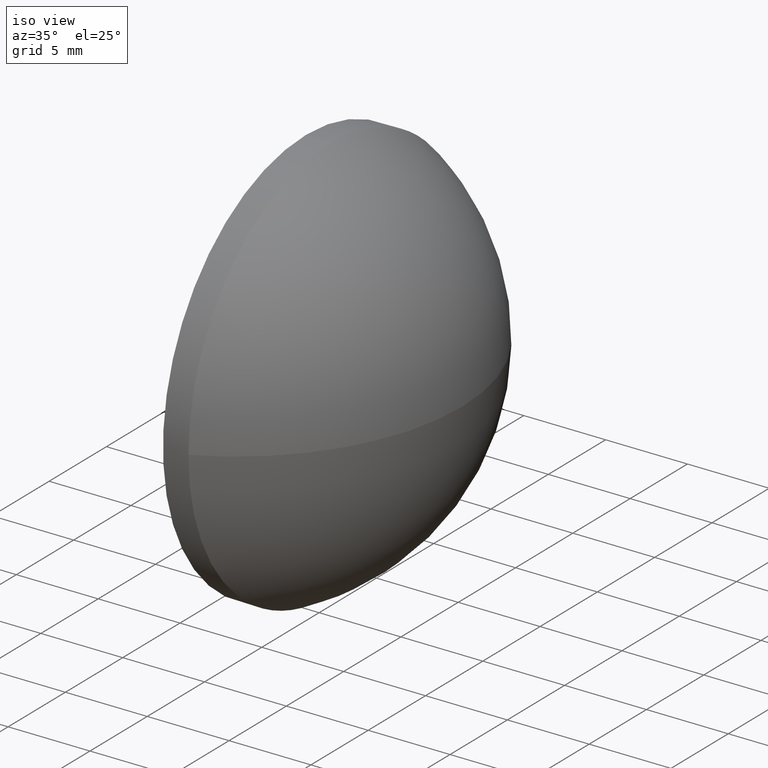
[diagram: clean part render]
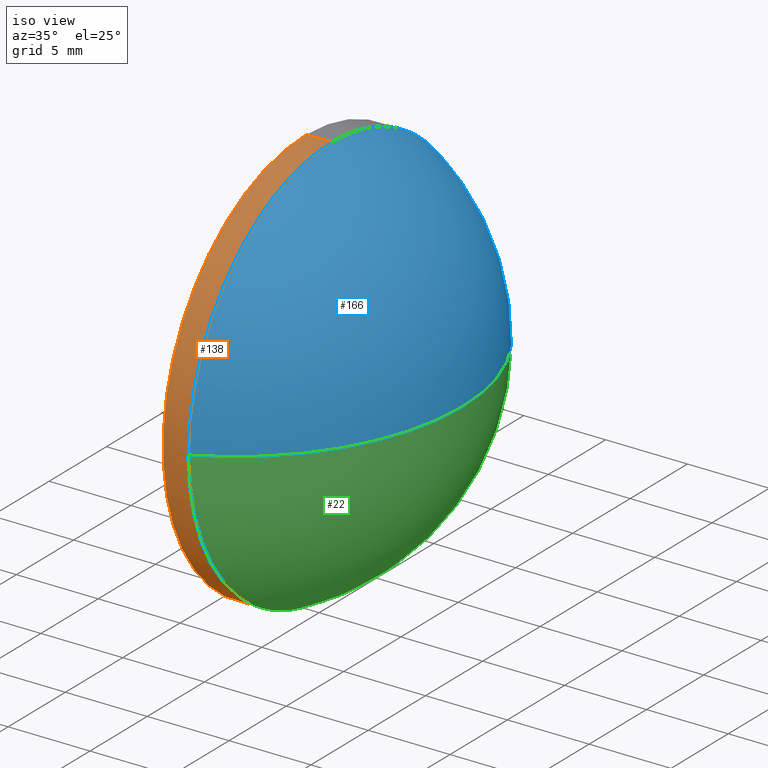
[diagram: same view with three faces highlighted in distinct colors, each labeled with its STEP entity id]
A machine part, iso view with three faces highlighted in distinct colors.
Their STEP definitions:

[orange] entity #138 — the highlighted cylindrical surface (partial cylindrical patch) has radius 12.5 mm, axis along (-1, -0, -0).
#6 = ORIENTED_EDGE ( 'NONE', *, *, #127, .F. ) ;
#10 = VERTEX_POINT ( 'NONE', #122 ) ;
#17 = DIRECTION ( 'NONE',  ( 0.0000000000000000000, 0.0000000000000000000, 1.000000000000000000 ) ) ;
#19 = EDGE_CURVE ( 'NONE', #39, #129, #158, .T. ) ;
#21 = CARTESIAN_POINT ( 'NONE',  ( 444.9787641155197100, -33.87662092568371000, -12.50000000000000400 ) ) ;
#39 = VERTEX_POINT ( 'NONE', #96 ) ;
#40 = LINE ( 'NONE', #65, #100 ) ;
#41 = AXIS2_PLACEMENT_3D ( 'NONE', #139, #153, #69 ) ;
#44 = VECTOR ( 'NONE', #136, 1000.000000000000000 ) ;
#48 = VERTEX_POINT ( 'NONE', #21 ) ;
#49 = CARTESIAN_POINT ( 'NONE',  ( 444.9787641155197100, -33.87662092568371000, 0.0000000000000000000 ) ) ;
#50 = DIRECTION ( 'NONE',  ( -1.000000000000000000, -0.0000000000000000000, -0.0000000000000000000 ) ) ;
#52 = CARTESIAN_POINT ( 'NONE',  ( 441.3996565370827600, -33.87662092568371000, 12.50000000000000400 ) ) ;
#55 = EDGE_CURVE ( 'NONE', #129, #10, #144, .T. ) ;
#56 = ORIENTED_EDGE ( 'NONE', *, *, #55, .T. ) ;
#62 = AXIS2_PLACEMENT_3D ( 'NONE', #49, #150, #67 ) ;
#65 = CARTESIAN_POINT ( 'NONE',  ( 441.3996565370827600, -33.87662092568371000, -12.50000000000000400 ) ) ;
#66 = FACE_OUTER_BOUND ( 'NONE', #71, .T. ) ;
#67 = DIRECTION ( 'NONE',  ( 0.0000000000000000000, 0.0000000000000000000, 1.000000000000000000 ) ) ;
#69 = DIRECTION ( 'NONE',  ( 0.0000000000000000000, 0.0000000000000000000, 1.000000000000000000 ) ) ;
#70 = CIRCLE ( 'NONE', #178, 12.50000000000000400 ) ;
#71 = EDGE_LOOP ( 'NONE', ( #114, #154, #179, #56, #6 ) ) ;
#87 = CARTESIAN_POINT ( 'NONE',  ( 443.4287641155197000, -33.87662092568371000, -12.50000000000000400 ) ) ;
#93 = DIRECTION ( 'NONE',  ( -1.000000000000000000, -0.0000000000000000000, -0.0000000000000000000 ) ) ;
#96 = CARTESIAN_POINT ( 'NONE',  ( 444.9787641155197100, -46.37662092568371700, -1.530808498934190700E-015 ) ) ;
#99 = EDGE_CURVE ( 'NONE', #48, #175, #40, .T. ) ;
#100 = VECTOR ( 'NONE', #50, 1000.000000000000000 ) ;
#108 = CARTESIAN_POINT ( 'NONE',  ( 443.4287641155197000, -33.87662092568371000, 0.0000000000000000000 ) ) ;
#109 = CARTESIAN_POINT ( 'NONE',  ( 444.9787641155197100, -33.87662092568371000, 12.50000000000000400 ) ) ;
#114 = ORIENTED_EDGE ( 'NONE', *, *, #99, .F. ) ;
#122 = CARTESIAN_POINT ( 'NONE',  ( 443.4287641155197000, -33.87662092568371000, 12.50000000000000400 ) ) ;
#127 = EDGE_CURVE ( 'NONE', #175, #10, #70, .T. ) ;
#129 = VERTEX_POINT ( 'NONE', #109 ) ;
#130 = EDGE_CURVE ( 'NONE', #48, #39, #174, .T. ) ;
#134 = CARTESIAN_POINT ( 'NONE',  ( 441.3996565370827600, -33.87662092568371000, 0.0000000000000000000 ) ) ;
#135 = DIRECTION ( 'NONE',  ( -1.000000000000000000, -0.0000000000000000000, -0.0000000000000000000 ) ) ;
#136 = DIRECTION ( 'NONE',  ( -1.000000000000000000, -0.0000000000000000000, -0.0000000000000000000 ) ) ;
#138 = ADVANCED_FACE ( 'NONE', ( #66 ), #143, .T. ) ;
#139 = CARTESIAN_POINT ( 'NONE',  ( 444.9787641155197100, -33.87662092568371000, 0.0000000000000000000 ) ) ;
#143 = CYLINDRICAL_SURFACE ( 'NONE', #159, 12.50000000000000400 ) ;
#144 = LINE ( 'NONE', #52, #44 ) ;
#149 = DIRECTION ( 'NONE',  ( 0.0000000000000000000, 0.0000000000000000000, 1.000000000000000000 ) ) ;
#150 = DIRECTION ( 'NONE',  ( -1.000000000000000000, -0.0000000000000000000, -0.0000000000000000000 ) ) ;
#153 = DIRECTION ( 'NONE',  ( -1.000000000000000000, -0.0000000000000000000, -0.0000000000000000000 ) ) ;
#154 = ORIENTED_EDGE ( 'NONE', *, *, #130, .T. ) ;
#158 = CIRCLE ( 'NONE', #41, 12.50000000000000400 ) ;
#159 = AXIS2_PLACEMENT_3D ( 'NONE', #134, #135, #149 ) ;
#174 = CIRCLE ( 'NONE', #62, 12.50000000000000400 ) ;
#175 = VERTEX_POINT ( 'NONE', #87 ) ;
#178 = AXIS2_PLACEMENT_3D ( 'NONE', #108, #93, #17 ) ;
#179 = ORIENTED_EDGE ( 'NONE', *, *, #19, .T. ) ;

[blue] entity #166 — the highlighted spherical surface has radius 13.802 mm.
#1 = CIRCLE ( 'NONE', #90, 13.80204402515722300 ) ;
#19 = EDGE_CURVE ( 'NONE', #39, #129, #158, .T. ) ;
#20 = DIRECTION ( 'NONE',  ( -0.0000000000000000000, 0.0000000000000000000, 1.000000000000000000 ) ) ;
#26 = CARTESIAN_POINT ( 'NONE',  ( 439.1267200903624800, -33.87662092568371700, 0.0000000000000000000 ) ) ;
#35 = EDGE_CURVE ( 'NONE', #74, #85, #1, .T. ) ;
#36 = SPHERICAL_SURFACE ( 'NONE', #167, 13.80204402515724000 ) ;
#39 = VERTEX_POINT ( 'NONE', #96 ) ;
#41 = AXIS2_PLACEMENT_3D ( 'NONE', #139, #153, #69 ) ;
#43 = ORIENTED_EDGE ( 'NONE', *, *, #115, .F. ) ;
#51 = DIRECTION ( 'NONE',  ( 0.0000000000000000000, 1.000000000000000000, 1.224646799147353200E-016 ) ) ;
#59 = DIRECTION ( 'NONE',  ( 0.0000000000000000000, 1.000000000000000000, 0.0000000000000000000 ) ) ;
#60 = EDGE_CURVE ( 'NONE', #129, #85, #156, .T. ) ;
#69 = DIRECTION ( 'NONE',  ( 0.0000000000000000000, 0.0000000000000000000, 1.000000000000000000 ) ) ;
#74 = VERTEX_POINT ( 'NONE', #82 ) ;
#76 = FACE_OUTER_BOUND ( 'NONE', #182, .T. ) ;
#82 = CARTESIAN_POINT ( 'NONE',  ( 452.9287641155197000, -33.87662092568371700, 0.0000000000000000000 ) ) ;
#85 = VERTEX_POINT ( 'NONE', #106 ) ;
#90 = AXIS2_PLACEMENT_3D ( 'NONE', #95, #20, #110 ) ;
#94 = DIRECTION ( 'NONE',  ( 0.0000000000000000000, 1.224646799147353200E-016, -1.000000000000000000 ) ) ;
#95 = CARTESIAN_POINT ( 'NONE',  ( 439.1267200903624800, -33.87662092568371700, 0.0000000000000000000 ) ) ;
#96 = CARTESIAN_POINT ( 'NONE',  ( 444.9787641155197100, -46.37662092568371700, -1.530808498934190700E-015 ) ) ;
#98 = ORIENTED_EDGE ( 'NONE', *, *, #19, .F. ) ;
#106 = CARTESIAN_POINT ( 'NONE',  ( 444.9787641155197100, -21.37662092568372100, 0.0000000000000000000 ) ) ;
#109 = CARTESIAN_POINT ( 'NONE',  ( 444.9787641155197100, -33.87662092568371000, 12.50000000000000400 ) ) ;
#110 = DIRECTION ( 'NONE',  ( 1.000000000000000000, 0.0000000000000000000, 0.0000000000000000000 ) ) ;
#111 = ORIENTED_EDGE ( 'NONE', *, *, #60, .F. ) ;
#112 = AXIS2_PLACEMENT_3D ( 'NONE', #126, #94, #51 ) ;
#113 = CIRCLE ( 'NONE', #112, 13.80204402515724000 ) ;
#115 = EDGE_CURVE ( 'NONE', #74, #39, #113, .T. ) ;
#125 = DIRECTION ( 'NONE',  ( 0.0000000000000000000, 0.0000000000000000000, 1.000000000000000000 ) ) ;
#126 = CARTESIAN_POINT ( 'NONE',  ( 439.1267200903624800, -33.87662092568371700, 0.0000000000000000000 ) ) ;
#129 = VERTEX_POINT ( 'NONE', #109 ) ;
#131 = DIRECTION ( 'NONE',  ( -0.0000000000000000000, 0.0000000000000000000, -1.000000000000000000 ) ) ;
#137 = DIRECTION ( 'NONE',  ( -1.000000000000000000, -0.0000000000000000000, -0.0000000000000000000 ) ) ;
#139 = CARTESIAN_POINT ( 'NONE',  ( 444.9787641155197100, -33.87662092568371000, 0.0000000000000000000 ) ) ;
#153 = DIRECTION ( 'NONE',  ( -1.000000000000000000, -0.0000000000000000000, -0.0000000000000000000 ) ) ;
#156 = CIRCLE ( 'NONE', #168, 12.50000000000000400 ) ;
#158 = CIRCLE ( 'NONE', #41, 12.50000000000000400 ) ;
#164 = ORIENTED_EDGE ( 'NONE', *, *, #35, .T. ) ;
#165 = CARTESIAN_POINT ( 'NONE',  ( 444.9787641155197100, -33.87662092568371000, 0.0000000000000000000 ) ) ;
#166 = ADVANCED_FACE ( 'NONE', ( #76 ), #36, .T. ) ;
#167 = AXIS2_PLACEMENT_3D ( 'NONE', #26, #131, #59 ) ;
#168 = AXIS2_PLACEMENT_3D ( 'NONE', #165, #137, #125 ) ;
#182 = EDGE_LOOP ( 'NONE', ( #43, #164, #111, #98 ) ) ;

[green] entity #22 — the highlighted spherical surface has radius 13.802 mm.
#1 = CIRCLE ( 'NONE', #90, 13.80204402515722300 ) ;
#7 = CARTESIAN_POINT ( 'NONE',  ( 439.1267200903624800, -33.87662092568371700, 0.0000000000000000000 ) ) ;
#9 = DIRECTION ( 'NONE',  ( 0.0000000000000000000, 1.000000000000000000, 0.0000000000000000000 ) ) ;
#15 = AXIS2_PLACEMENT_3D ( 'NONE', #68, #124, #31 ) ;
#20 = DIRECTION ( 'NONE',  ( -0.0000000000000000000, 0.0000000000000000000, 1.000000000000000000 ) ) ;
#21 = CARTESIAN_POINT ( 'NONE',  ( 444.9787641155197100, -33.87662092568371000, -12.50000000000000400 ) ) ;
#22 = ADVANCED_FACE ( 'NONE', ( #141 ), #29, .T. ) ;
#28 = ORIENTED_EDGE ( 'NONE', *, *, #130, .F. ) ;
#29 = SPHERICAL_SURFACE ( 'NONE', #177, 13.80204402515724000 ) ;
#31 = DIRECTION ( 'NONE',  ( 0.0000000000000000000, 0.0000000000000000000, 1.000000000000000000 ) ) ;
#32 = CIRCLE ( 'NONE', #15, 12.50000000000000400 ) ;
#35 = EDGE_CURVE ( 'NONE', #74, #85, #1, .T. ) ;
#39 = VERTEX_POINT ( 'NONE', #96 ) ;
#48 = VERTEX_POINT ( 'NONE', #21 ) ;
#49 = CARTESIAN_POINT ( 'NONE',  ( 444.9787641155197100, -33.87662092568371000, 0.0000000000000000000 ) ) ;
#51 = DIRECTION ( 'NONE',  ( 0.0000000000000000000, 1.000000000000000000, 1.224646799147353200E-016 ) ) ;
#62 = AXIS2_PLACEMENT_3D ( 'NONE', #49, #150, #67 ) ;
#67 = DIRECTION ( 'NONE',  ( 0.0000000000000000000, 0.0000000000000000000, 1.000000000000000000 ) ) ;
#68 = CARTESIAN_POINT ( 'NONE',  ( 444.9787641155197100, -33.87662092568371000, 0.0000000000000000000 ) ) ;
#74 = VERTEX_POINT ( 'NONE', #82 ) ;
#82 = CARTESIAN_POINT ( 'NONE',  ( 452.9287641155197000, -33.87662092568371700, 0.0000000000000000000 ) ) ;
#85 = VERTEX_POINT ( 'NONE', #106 ) ;
#90 = AXIS2_PLACEMENT_3D ( 'NONE', #95, #20, #110 ) ;
#94 = DIRECTION ( 'NONE',  ( 0.0000000000000000000, 1.224646799147353200E-016, -1.000000000000000000 ) ) ;
#95 = CARTESIAN_POINT ( 'NONE',  ( 439.1267200903624800, -33.87662092568371700, 0.0000000000000000000 ) ) ;
#96 = CARTESIAN_POINT ( 'NONE',  ( 444.9787641155197100, -46.37662092568371700, -1.530808498934190700E-015 ) ) ;
#104 = ORIENTED_EDGE ( 'NONE', *, *, #35, .F. ) ;
#106 = CARTESIAN_POINT ( 'NONE',  ( 444.9787641155197100, -21.37662092568372100, 0.0000000000000000000 ) ) ;
#110 = DIRECTION ( 'NONE',  ( 1.000000000000000000, 0.0000000000000000000, 0.0000000000000000000 ) ) ;
#112 = AXIS2_PLACEMENT_3D ( 'NONE', #126, #94, #51 ) ;
#113 = CIRCLE ( 'NONE', #112, 13.80204402515724000 ) ;
#115 = EDGE_CURVE ( 'NONE', #74, #39, #113, .T. ) ;
#117 = ORIENTED_EDGE ( 'NONE', *, *, #128, .F. ) ;
#124 = DIRECTION ( 'NONE',  ( -1.000000000000000000, -0.0000000000000000000, -0.0000000000000000000 ) ) ;
#126 = CARTESIAN_POINT ( 'NONE',  ( 439.1267200903624800, -33.87662092568371700, 0.0000000000000000000 ) ) ;
#128 = EDGE_CURVE ( 'NONE', #85, #48, #32, .T. ) ;
#130 = EDGE_CURVE ( 'NONE', #48, #39, #174, .T. ) ;
#141 = FACE_OUTER_BOUND ( 'NONE', #161, .T. ) ;
#150 = DIRECTION ( 'NONE',  ( -1.000000000000000000, -0.0000000000000000000, -0.0000000000000000000 ) ) ;
#161 = EDGE_LOOP ( 'NONE', ( #104, #173, #28, #117 ) ) ;
#173 = ORIENTED_EDGE ( 'NONE', *, *, #115, .T. ) ;
#174 = CIRCLE ( 'NONE', #62, 12.50000000000000400 ) ;
#177 = AXIS2_PLACEMENT_3D ( 'NONE', #7, #180, #9 ) ;
#180 = DIRECTION ( 'NONE',  ( -0.0000000000000000000, 0.0000000000000000000, -1.000000000000000000 ) ) ;